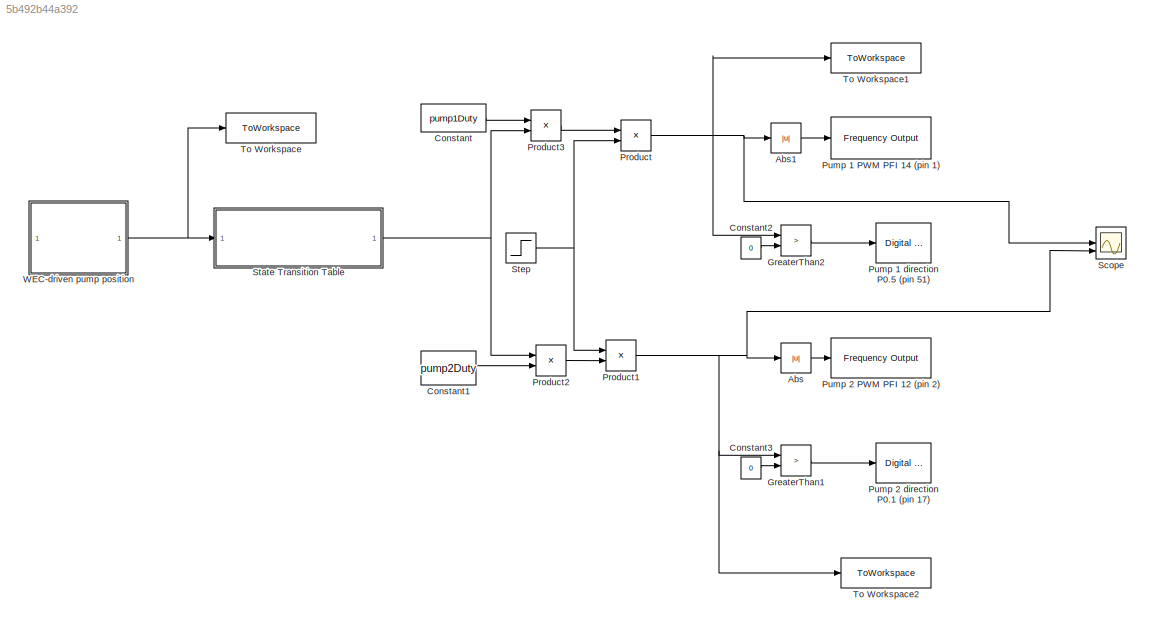
MODEL slx_5b492b44a392
KIND model
CONFIG AbsTol = auto
CONFIG EnableMultiTasking = off
CONFIG FixedStep = auto
CONFIG InitFcn = addpath('SCADA'); \ninitFcn_SCADA;
CONFIG MaxStep = auto
CONFIG MinStep = auto
CONFIG RelTol = 1e-3
CONFIG SampleTimeConstraint = Unconstrained
CONFIG SolverName = VariableStepAuto
CONFIG StartTime = 0.0
CONFIG StopTime = 4
BLOCK [Abs] Abs
  SaturateOnIntegerOverflow = off
BLOCK [Abs] Abs1
  SaturateOnIntegerOverflow = off
BLOCK [Constant] Constant
  Value = pump1Duty
BLOCK [Constant] Constant1
  Value = pump2Duty
BLOCK [Constant] Constant2
  Value = 0
BLOCK [Constant] Constant3
  Value = 0
BLOCK [RelationalOperator] GreaterThan1
  InputSameDT = off
  Operator = >
  OutDataTypeStr = boolean
  RndMeth = Simplest
BLOCK [RelationalOperator] GreaterThan2
  InputSameDT = off
  Operator = >
  OutDataTypeStr = boolean
  RndMeth = Simplest
BLOCK [Product] Product
BLOCK [Product] Product1
BLOCK [Product] Product2
BLOCK [Product] Product3
BLOCK [Reference] Pump 1 PWM PFI 14 (pin 1)  REF=sldrtlib/Frequency Output
  AttributesFormatString = National Instruments\nPCIe-6343 [auto]
  SourceBlock = sldrtlib/Frequency Output
  SourceType = Simulink Desktop Real-Time Frequency Output
BLOCK [Reference] Pump 1 direction P0.5 (pin 51)  REF=sldrtlib/Digital Output
  AttributesFormatString = National Instruments\nPCIe-6343 [auto]
  SourceBlock = sldrtlib/Digital Output
  SourceType = Simulink Desktop Real-Time Digital Output
BLOCK [Reference] Pump 2 PWM PFI 12 (pin 2)  REF=sldrtlib/Frequency Output
  AttributesFormatString = National Instruments\nPCIe-6343 [auto]
  SourceBlock = sldrtlib/Frequency Output
  SourceType = Simulink Desktop Real-Time Frequency Output
BLOCK [Reference] Pump 2 direction P0.1 (pin 17)  REF=sldrtlib/Digital Output
  AttributesFormatString = National Instruments\nPCIe-6343 [auto]
  SourceBlock = sldrtlib/Digital Output
  SourceType = Simulink Desktop Real-Time Digital Output
BLOCK [Scope] Scope
  ActiveDisplayYMaximum = 0.25835866261398177
  ActiveDisplayYMinimum = -0.452887537993921
  Floating = off
  GraphicalSettings = {"AxesScalingProperties":{"AlignXAxis":"Center","AlignYAxis":"Center","AutoScaleXAxisLimits":false,"AxesScaling":"Manual","AxesScalingNumUpdates":10,"ExpandOnly":true,"ScaleAxesLimitsAtStop":false,"XAxisDataRange":100,"YAxisDataRange":80},"DisplayProperties":{"ColorOrder":["auto","auto","auto","auto","auto","auto","auto","auto","auto","auto","auto","auto","auto","auto","auto","auto","auto","auto",...<+2284ch>
  MultipleDisplayCache = [{"MaxYLimMag":1,"MaxYLimReal":0.25835866261398177,"MinYLimMag":0,"MinYLimReal":-0.452887537993921,"PlotAsMagnitudePhase":false,"ShowGrid":true,"ShowLegend":false,"Title":"%<SignalLabel>","YLabel":""}]
  NumInputPorts = 3
  ScopeFrameLocation = window
  WasSavedAsWebScope = on
  WindowPosition = [560.000000,315.000000,560.000000,420.000000,]
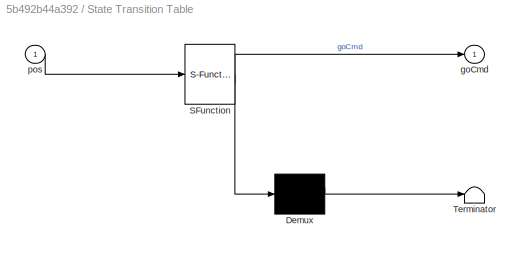
BLOCK [SubSystem] State Transition Table
  ErrorFcn = Stateflow.Translate.translate
  NameLocation = top
  PermitHierarchicalResolution = ExplicitOnly
  SFBlockType = State Transition Table
  TreatAsAtomicUnit = on
BLOCK [Demux] State Transition Table/ Demux 
  Outputs = 1
BLOCK [S-Function] State Transition Table/ SFunction 
  EnableBusSupport = off
  FunctionName = sf_sfun
  PortCounts = [1 2]
  SFcnIsStateOwnerBlock = off
  SFunctionDeploymentMode = off
  Tag = Stateflow S-Function 17
BLOCK [Terminator] State Transition Table/ Terminator 
BLOCK [Outport] State Transition Table/goCmd
BLOCK [Inport] State Transition Table/pos
BLOCK [Step] Step
  SampleTime = 0
  Time = 0.1
BLOCK [ToWorkspace] To Workspace
  FixptAsFi = on
  MaxDataPoints = inf
  SampleTime = -1
  SaveFormat = Timeseries
  VariableName = pos
BLOCK [ToWorkspace] To Workspace1
  FixptAsFi = on
  MaxDataPoints = inf
  SampleTime = -1
  SaveFormat = Timeseries
  VariableName = pump1Duty
BLOCK [ToWorkspace] To Workspace2
  FixptAsFi = on
  MaxDataPoints = inf
  SampleTime = -1
  SaveFormat = Timeseries
  VariableName = pump2Duty
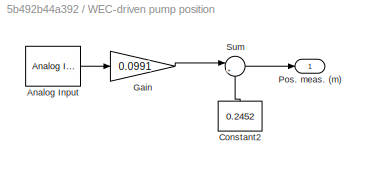
BLOCK [SubSystem] WEC-driven pump position
BLOCK [Reference] WEC-driven pump position/Analog Input  REF=sldrtlib/Analog Input
  AttributesFormatString = National Instruments\nPCIe-6343 [auto]
  SourceBlock = sldrtlib/Analog Input
  SourceType = Simulink Desktop Real-Time Analog Input
BLOCK [Constant] WEC-driven pump position/Constant2
  NameLocation = right
  Value = 0.2452
BLOCK [Gain] WEC-driven pump position/Gain
  Gain = 0.0991
BLOCK [Outport] WEC-driven pump position/Pos. meas. (m)
BLOCK [Sum] WEC-driven pump position/Sum
  Inputs = |+-
LINE Abs1:1 -> Pump 1 PWM PFI 14 (pin 1):1
LINE Abs:1 -> Pump 2 PWM PFI 12 (pin 2):1
LINE Constant1:1 -> Product2:2
LINE Constant2:1 -> GreaterThan2:2
LINE Constant3:1 -> GreaterThan1:2
LINE Constant:1 -> Product3:1
LINE GreaterThan1:1 -> Pump 2 direction P0.1 (pin 17):1
LINE GreaterThan2:1 -> Pump 1 direction P0.5 (pin 51):1
NET Product1:1 -> Abs:1, GreaterThan1:1, Scope:3, To Workspace2:1
LINE Product2:1 -> Product1:2
LINE Product3:1 -> Product:1
NET Product:1 -> Abs1:1, GreaterThan2:1, Scope:1, To Workspace1:1
NET State Transition Table:1 -> Product2:1, Product3:2
NET Step:1 -> Product1:1, Product:2
LINE WEC-driven pump position/Analog Input:1 -> WEC-driven pump position/Gain:1
LINE WEC-driven pump position/Constant2:1 -> WEC-driven pump position/Sum:2
LINE WEC-driven pump position/Gain:1 -> WEC-driven pump position/Sum:1
LINE WEC-driven pump position/Sum:1 -> WEC-driven pump position/Pos. meas. (m):1
NET WEC-driven pump position:1 -> State Transition Table:1, To Workspace:1
note: NET lines group one-source signal fan-out (src -> all destinations, sorted); 1:1 wires keep LINE
CHART State Transition Table states=7 transitions=18
  STATE_LABEL 'init\nentry:\ngoCmd=0;'
  STATE_LABEL 'idle\nentry:\ngoCmd=0;'
  STATE_LABEL 'goFromCenterZone\nentry:\ngoCmd=1;'
  STATE_LABEL 'goFromPosBuffer\nentry:\ngoCmd=1;'
  STATE_LABEL 'goFromNegBuffer\nentry:\ngoCmd=1;'
  STATE_LABEL 'stop\nentry:\ngoCmd=0;'
  STATE_LABEL 'terminal'
CHART  states=0 transitions=0
